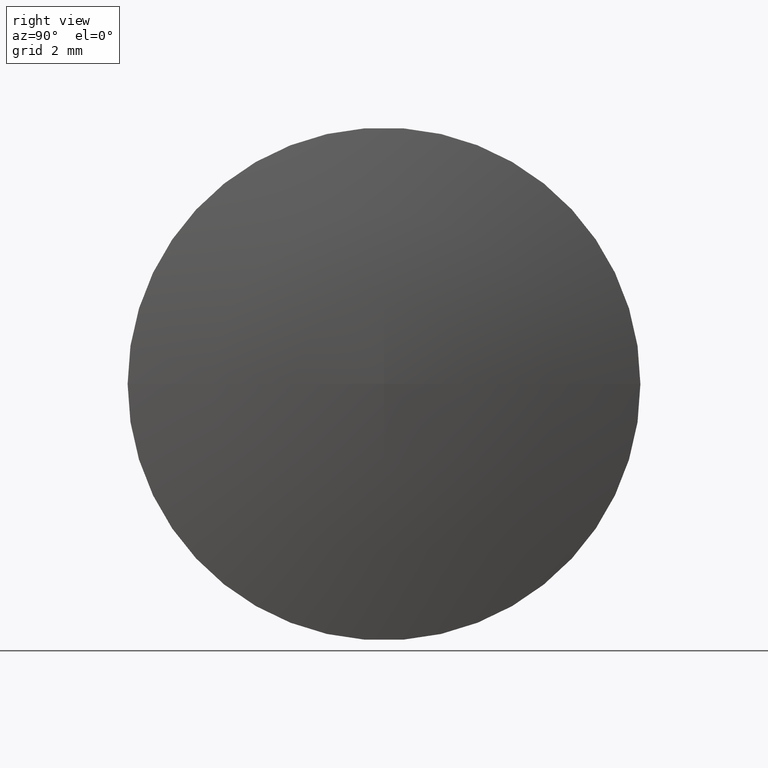
[diagram: clean part render]
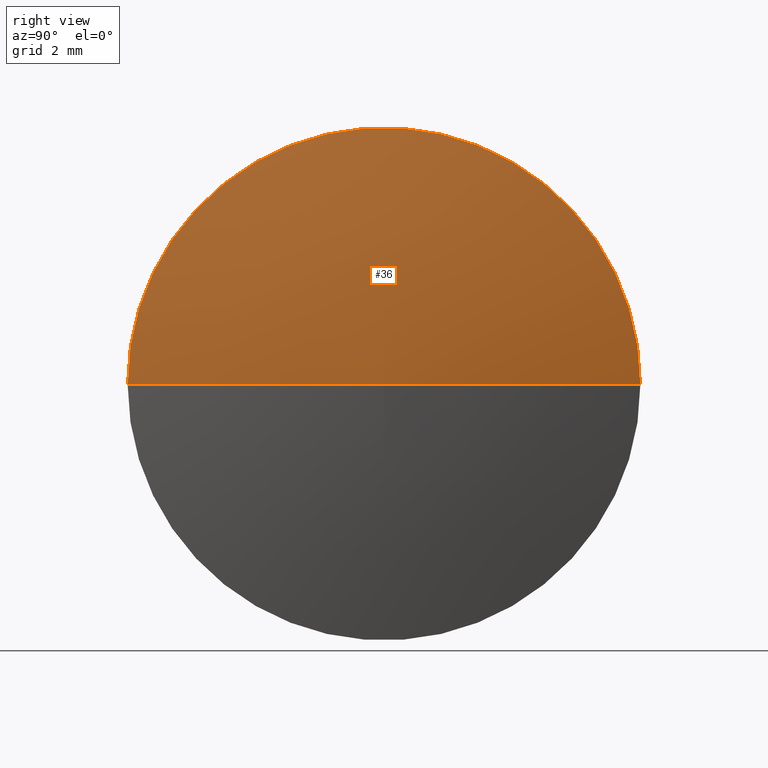
[diagram: same view with one face highlighted and labeled with its STEP entity id]
A machine part, right view. The second image highlights one B-rep face of the part: STEP entity #36.
In plain terms, the highlighted toroidal blend (fillet) surface has major radius 0.0003 mm and minor (blend) radius 25.7518 mm.
Its self-contained STEP definition (entity closure, byte-faithful):
#5 = AXIS2_PLACEMENT_3D ( 'NONE', #110, #122, #131 ) ;
#7 = CARTESIAN_POINT ( 'NONE',  ( 898.0368167638556500, 346.9456152505001700, 0.0000000000000000000 ) ) ;
#11 = FACE_OUTER_BOUND ( 'NONE', #29, .T. ) ;
#12 = CARTESIAN_POINT ( 'NONE',  ( 872.2850364027236800, 346.9452797258829300, 4.108991433410919200E-020 ) ) ;
#18 = EDGE_CURVE ( 'NONE', #59, #82, #20, .T. ) ;
#20 = CIRCLE ( 'NONE', #38, 25.75178036331771000 ) ;
#25 = TOROIDAL_SURFACE ( 'NONE', #48, 0.0003355246129963153000, 25.75178036331766400 ) ;
#29 = EDGE_LOOP ( 'NONE', ( #121, #45, #88 ) ) ;
#32 = DIRECTION ( 'NONE',  ( 0.0000000000000000000, -1.000000000000000000, 1.224646799147353500E-016 ) ) ;
#36 = ADVANCED_FACE ( 'NONE', ( #11 ), #25, .T. ) ;
#38 = AXIS2_PLACEMENT_3D ( 'NONE', #41, #133, #42 ) ;
#41 = CARTESIAN_POINT ( 'NONE',  ( 872.2850364027236800, 346.9459507751088800, 0.0000000000000000000 ) ) ;
#42 = DIRECTION ( 'NONE',  ( -1.000000000000000000, 0.0000000000000000000, 0.0000000000000000000 ) ) ;
#44 = CIRCLE ( 'NONE', #5, 4.999999999999726400 ) ;
#45 = ORIENTED_EDGE ( 'NONE', *, *, #104, .T. ) ;
#48 = AXIS2_PLACEMENT_3D ( 'NONE', #145, #101, #135 ) ;
#59 = VERTEX_POINT ( 'NONE', #89 ) ;
#61 = AXIS2_PLACEMENT_3D ( 'NONE', #12, #114, #32 ) ;
#65 = VERTEX_POINT ( 'NONE', #71 ) ;
#71 = CARTESIAN_POINT ( 'NONE',  ( 897.5468167638571200, 341.9456152505001100, 6.123233995736743600E-016 ) ) ;
#82 = VERTEX_POINT ( 'NONE', #7 ) ;
#87 = CIRCLE ( 'NONE', #61, 25.75178036331765700 ) ;
#88 = ORIENTED_EDGE ( 'NONE', *, *, #18, .F. ) ;
#89 = CARTESIAN_POINT ( 'NONE',  ( 897.5468167638555300, 351.9456152505000500, 0.0000000000000000000 ) ) ;
#101 = DIRECTION ( 'NONE',  ( 1.000000000000000000, 1.665334536937733300E-013, -0.0000000000000000000 ) ) ;
#104 = EDGE_CURVE ( 'NONE', #65, #82, #87, .T. ) ;
#110 = CARTESIAN_POINT ( 'NONE',  ( 897.5468167638563300, 346.9456152505001100, 0.0000000000000000000 ) ) ;
#114 = DIRECTION ( 'NONE',  ( -2.039446610170334800E-029, 1.224646799147353200E-016, 1.000000000000000000 ) ) ;
#121 = ORIENTED_EDGE ( 'NONE', *, *, #130, .T. ) ;
#122 = DIRECTION ( 'NONE',  ( 1.000000000000000000, 1.665334536937733300E-013, -0.0000000000000000000 ) ) ;
#130 = EDGE_CURVE ( 'NONE', #59, #65, #44, .T. ) ;
#131 = DIRECTION ( 'NONE',  ( -1.554312234475304200E-013, 1.000000000000000000, 0.0000000000000000000 ) ) ;
#133 = DIRECTION ( 'NONE',  ( -0.0000000000000000000, 0.0000000000000000000, -1.000000000000000000 ) ) ;
#135 = DIRECTION ( 'NONE',  ( -1.665334536937733300E-013, 1.000000000000000000, 0.0000000000000000000 ) ) ;
#145 = CARTESIAN_POINT ( 'NONE',  ( 872.2850364027236800, 346.9456152504959100, 0.0000000000000000000 ) ) ;